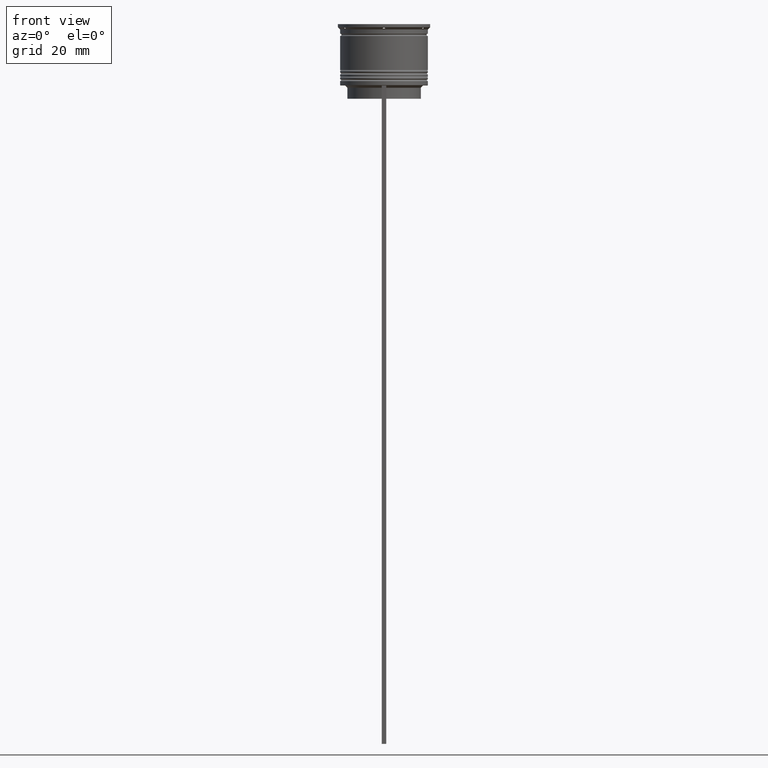
[diagram: clean part render]
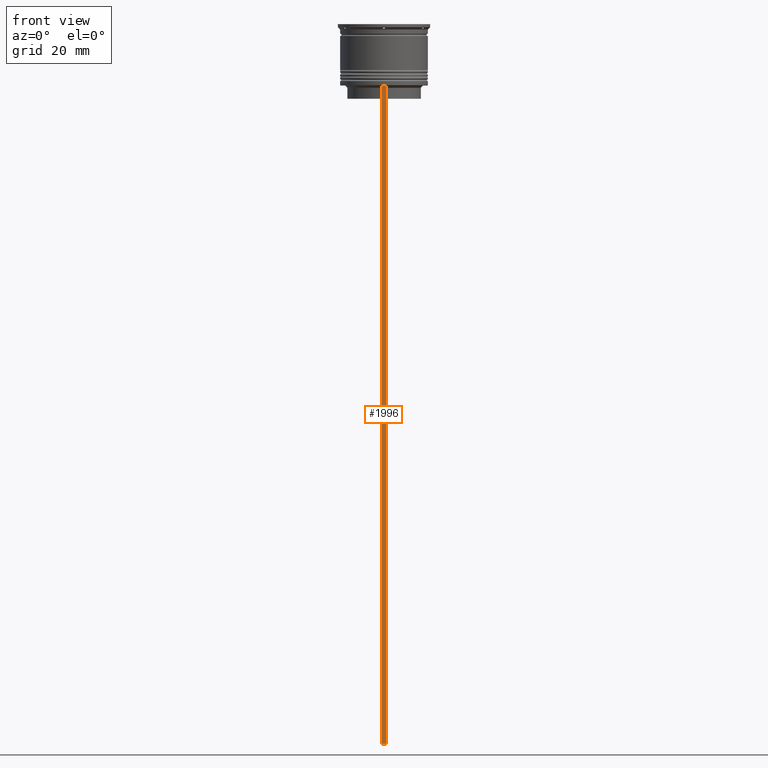
[diagram: same view with one face highlighted and labeled with its STEP entity id]
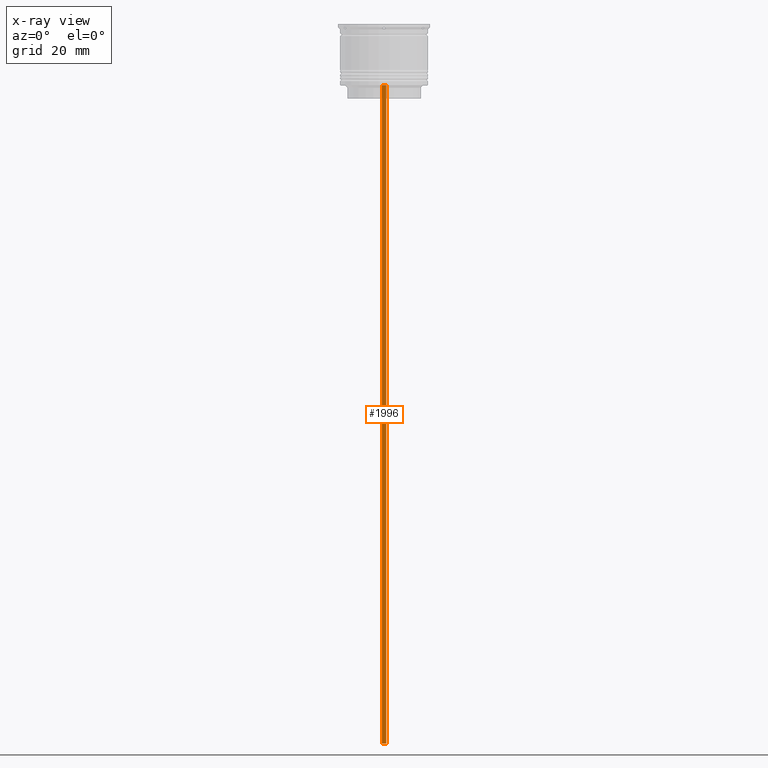
[diagram: x-ray of the same camera — body ghosted, the highlighted face saturated]
A machine part, front view. The second image highlights one B-rep face of the part: STEP entity #1996.
The next image is the same camera in x-ray: the body ghosted, the highlighted face saturated — about 0% of this face is hidden behind the body in this view.
In plain terms, the highlighted planar face has unit normal (0, -1, -0).
Its self-contained STEP definition (entity closure, byte-faithful):
#4 = EDGE_CURVE ( 'NONE', #166, #1696, #1319, .T. ) ;
#130 = CARTESIAN_POINT ( 'NONE',  ( -0.5000000000000001110, -9.749999999999998224, -14.00000000000000178 ) ) ;
#166 = VERTEX_POINT ( 'NONE', #482 ) ;
#228 = ORIENTED_EDGE ( 'NONE', *, *, #1973, .T. ) ;
#254 = CARTESIAN_POINT ( 'NONE',  ( -0.5000000000000001110, -9.749999999999998224, -163.9999999999999716 ) ) ;
#333 = DIRECTION ( 'NONE',  ( -1.000000000000000000, 0.000000000000000000, 0.000000000000000000 ) ) ;
#370 = FACE_OUTER_BOUND ( 'NONE', #2548, .T. ) ;
#482 = CARTESIAN_POINT ( 'NONE',  ( 0.4999999999999998890, -9.749999999999998224, -163.9999999999999716 ) ) ;
#499 = CARTESIAN_POINT ( 'NONE',  ( 0.4999999999999998890, -9.749999999999998224, -14.00000000000000178 ) ) ;
#531 = AXIS2_PLACEMENT_3D ( 'NONE', #1705, #920, #2138 ) ;
#570 = LINE ( 'NONE', #1117, #2530 ) ;
#576 = ORIENTED_EDGE ( 'NONE', *, *, #4, .F. ) ;
#809 = DIRECTION ( 'NONE',  ( 1.000000000000000000, 0.000000000000000000, 0.000000000000000000 ) ) ;
#851 = VECTOR ( 'NONE', #809, 1000.000000000000000 ) ;
#876 = VECTOR ( 'NONE', #333, 1000.000000000000000 ) ;
#920 = DIRECTION ( 'NONE',  ( 0.000000000000000000, -1.000000000000000000, -0.000000000000000000 ) ) ;
#996 = LINE ( 'NONE', #2193, #851 ) ;
#1049 = EDGE_CURVE ( 'NONE', #1068, #166, #1306, .T. ) ;
#1068 = VERTEX_POINT ( 'NONE', #499 ) ;
#1117 = CARTESIAN_POINT ( 'NONE',  ( -0.5000000000000001110, -9.749999999999998224, 5.525624189766635830 ) ) ;
#1306 = LINE ( 'NONE', #2483, #1514 ) ;
#1319 = LINE ( 'NONE', #2121, #876 ) ;
#1514 = VECTOR ( 'NONE', #1891, 1000.000000000000000 ) ;
#1696 = VERTEX_POINT ( 'NONE', #254 ) ;
#1705 = CARTESIAN_POINT ( 'NONE',  ( 0.4999999999999998890, -9.749999999999998224, 5.525624189766635830 ) ) ;
#1740 = PLANE ( 'NONE',  #531 ) ;
#1891 = DIRECTION ( 'NONE',  ( 0.000000000000000000, 0.000000000000000000, -1.000000000000000000 ) ) ;
#1925 = DIRECTION ( 'NONE',  ( 0.000000000000000000, 0.000000000000000000, -1.000000000000000000 ) ) ;
#1973 = EDGE_CURVE ( 'NONE', #2020, #1696, #570, .T. ) ;
#1996 = ADVANCED_FACE ( 'NONE', ( #370 ), #1740, .T. ) ;
#2020 = VERTEX_POINT ( 'NONE', #130 ) ;
#2121 = CARTESIAN_POINT ( 'NONE',  ( 0.4999999999999998890, -9.749999999999998224, -163.9999999999999716 ) ) ;
#2138 = DIRECTION ( 'NONE',  ( 0.000000000000000000, 0.000000000000000000, -1.000000000000000000 ) ) ;
#2188 = EDGE_CURVE ( 'NONE', #2020, #1068, #996, .T. ) ;
#2193 = CARTESIAN_POINT ( 'NONE',  ( 0.4999999999999998890, -9.749999999999998224, -14.00000000000000178 ) ) ;
#2329 = ORIENTED_EDGE ( 'NONE', *, *, #1049, .F. ) ;
#2344 = ORIENTED_EDGE ( 'NONE', *, *, #2188, .F. ) ;
#2483 = CARTESIAN_POINT ( 'NONE',  ( 0.4999999999999998890, -9.749999999999998224, 5.525624189766635830 ) ) ;
#2530 = VECTOR ( 'NONE', #1925, 1000.000000000000000 ) ;
#2548 = EDGE_LOOP ( 'NONE', ( #2344, #228, #576, #2329 ) ) ;